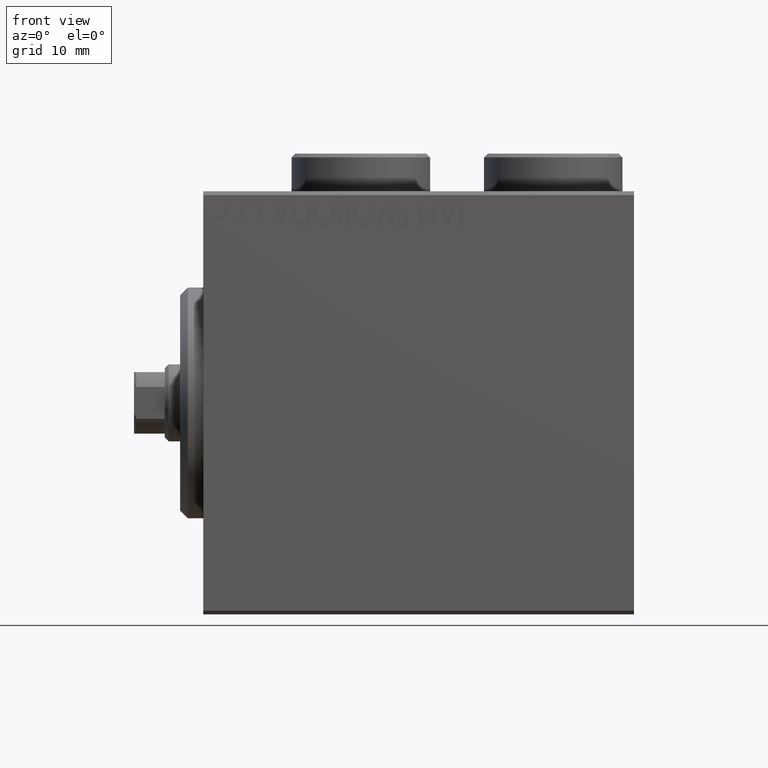
[diagram: clean part render]
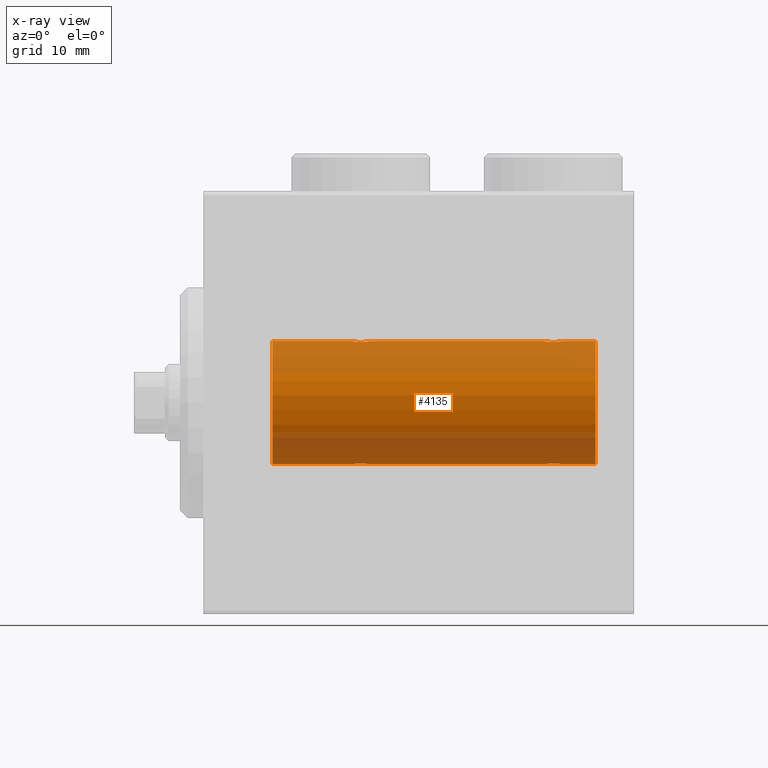
[diagram: x-ray — body ghosted, one internal face saturated and labeled with its STEP entity id]
A machine part, front view, then the same camera in x-ray: the body is ghosted and one INTERNAL B-rep face — a face not visible from any outside direction — is saturated and labeled: STEP entity #4135.
In plain terms, the highlighted cylindrical surface (partial cylindrical patch) has radius 8 mm, axis along (-1, -0, -0).
Its self-contained STEP definition (entity closure, byte-faithful):
#250 = CARTESIAN_POINT ( 'NONE',  ( 44.25000000000002132, -0.1654128203352934201, -7.999999999999998224 ) ) ;
#386 = CARTESIAN_POINT ( 'NONE',  ( 51.00000000000000711, 0.000000000000000000, 7.999999999999998224 ) ) ;
#430 = EDGE_CURVE ( 'NONE', #9644, #38093, #24320, .T. ) ;
#856 = DIRECTION ( 'NONE',  ( -1.000000000000000000, -0.000000000000000000, -0.000000000000000000 ) ) ;
#1284 = LINE ( 'NONE', #43611, #39198 ) ;
#1563 = CARTESIAN_POINT ( 'NONE',  ( 46.59165033467900230, -0.6303134207467945282, 7.976551562999473433 ) ) ;
#2018 = CARTESIAN_POINT ( 'NONE',  ( 44.40749082144728277, -0.6288424646912613714, 7.976670562295706368 ) ) ;
#2309 = FACE_OUTER_BOUND ( 'NONE', #33827, .T. ) ;
#2459 = ORIENTED_EDGE ( 'NONE', *, *, #22415, .T. ) ;
#3152 = DIRECTION ( 'NONE',  ( -1.000000000000000000, -0.000000000000000000, -0.000000000000000000 ) ) ;
#3156 = CARTESIAN_POINT ( 'NONE',  ( 19.25000000000000711, -3.107364149877583097E-15, -7.999999999999998224 ) ) ;
#3293 = CARTESIAN_POINT ( 'NONE',  ( 21.59165033467900940, -0.6303134207467971928, 7.976551562999473433 ) ) ;
#3469 = AXIS2_PLACEMENT_3D ( 'NONE', #6863, #35166, #10766 ) ;
#3708 = CARTESIAN_POINT ( 'NONE',  ( 44.25000000000000711, -5.932357478216049125E-15, -7.999999999999998224 ) ) ;
#3741 = CARTESIAN_POINT ( 'NONE',  ( 21.71666607977186914, -0.3297258132310516010, 7.994620111903504522 ) ) ;
#3932 = CARTESIAN_POINT ( 'NONE',  ( 44.28333392022813797, -0.3297258132310548762, -7.994620111903502746 ) ) ;
#4135 = ADVANCED_FACE ( 'NONE', ( #2309 ), #30385, .F. ) ;
#4712 = VERTEX_POINT ( 'NONE', #44258 ) ;
#5018 = CARTESIAN_POINT ( 'NONE',  ( 46.12714162834986098, -1.084361243153318943, -7.926301147147065684 ) ) ;
#5233 = CARTESIAN_POINT ( 'NONE',  ( 45.17169333885885152, -1.217212176555594771, 7.907113222863028312 ) ) ;
#5289 = CARTESIAN_POINT ( 'NONE',  ( 19.25000000000000711, -0.1654128203352910609, -7.999999999999998224 ) ) ;
#5650 = EDGE_CURVE ( 'NONE', #40560, #9266, #18471, .T. ) ;
#6206 = DIRECTION ( 'NONE',  ( 0.000000000000000000, 0.000000000000000000, 1.000000000000000000 ) ) ;
#6863 = CARTESIAN_POINT ( 'NONE',  ( 9.000000000000001776, 0.000000000000000000, 0.000000000000000000 ) ) ;
#6954 = CARTESIAN_POINT ( 'NONE',  ( 19.87285837165014613, -1.084361243153319387, 7.926301147147063908 ) ) ;
#7042 = ORIENTED_EDGE ( 'NONE', *, *, #34851, .F. ) ;
#7149 = CARTESIAN_POINT ( 'NONE',  ( 46.75000000000000000, -0.1632520343443067401, -8.000000000000000000 ) ) ;
#7374 = B_SPLINE_CURVE_WITH_KNOTS ( 'NONE', 3,
 ( #34813, #33965, #28132, #28361, #44326, #38930, #21219, #6954, #10860, #40873, #45416, #35253, #17759, #17975, #9346, #10201, #3293, #3741, #31806, #20772 ),
 .UNSPECIFIED., .F., .F.,
 ( 4, 2, 2, 2, 2, 2, 2, 2, 2, 4 ),
 ( 0.003914068143704968646, 0.004403205918210080332, 0.004892343692715191150, 0.005136912579967747861, 0.005381481467220303704, 0.005870619241725416257, 0.006359757016230527943, 0.006848894790735639629, 0.007338032565240751315, 0.007827170339745863001 ),
 .UNSPECIFIED. ) ;
#7909 = DIRECTION ( 'NONE',  ( -1.000000000000000000, -0.000000000000000000, -0.000000000000000000 ) ) ;
#9102 = VECTOR ( 'NONE', #856, 1000.000000000000000 ) ;
#9139 = CARTESIAN_POINT ( 'NONE',  ( 44.67312100220858184, -0.9409612394163470173, 7.944680966683011825 ) ) ;
#9198 = CARTESIAN_POINT ( 'NONE',  ( 19.73184514123549249, -0.9994562523959139577, -7.938165420771276182 ) ) ;
#9266 = VERTEX_POINT ( 'NONE', #28985 ) ;
#9346 = CARTESIAN_POINT ( 'NONE',  ( 21.26815485876451461, -0.9994562523959116263, 7.938165420771274405 ) ) ;
#9433 = CARTESIAN_POINT ( 'NONE',  ( 21.75000000000000355, 9.797173987965608855E-16, -7.999999999999998224 ) ) ;
#9539 = VECTOR ( 'NONE', #3152, 1000.000000000000000 ) ;
#9644 = VERTEX_POINT ( 'NONE', #28647 ) ;
#9908 = AXIS2_PLACEMENT_3D ( 'NONE', #44422, #26926, #6206 ) ;
#10201 = CARTESIAN_POINT ( 'NONE',  ( 21.49841755665748622, -0.7695044314719065026, 7.963745725343518878 ) ) ;
#10270 = CARTESIAN_POINT ( 'NONE',  ( 19.25000000000000000, -4.052102368803510290E-23, 7.999999999999998224 ) ) ;
#10462 = EDGE_CURVE ( 'NONE', #31597, #9266, #40951, .T. ) ;
#10691 = VECTOR ( 'NONE', #7909, 1000.000000000000000 ) ;
#10766 = DIRECTION ( 'NONE',  ( 0.000000000000000000, 0.000000000000000000, 1.000000000000000000 ) ) ;
#10860 = CARTESIAN_POINT ( 'NONE',  ( 19.94455374345276155, -1.122809931695431640, 7.920878051565288125 ) ) ;
#11850 = ORIENTED_EDGE ( 'NONE', *, *, #41193, .T. ) ;
#11919 = CARTESIAN_POINT ( 'NONE',  ( 46.26267005793690146, -0.9937204387496705316, -7.938174152191988853 ) ) ;
#12429 = CARTESIAN_POINT ( 'NONE',  ( 20.33559448851098850, -1.250104850332076634, -7.901723728054487417 ) ) ;
#12683 = ORIENTED_EDGE ( 'NONE', *, *, #33069, .T. ) ;
#12826 = CARTESIAN_POINT ( 'NONE',  ( 46.12943792732229298, -1.092287957405115639, 7.925333492638530153 ) ) ;
#12888 = CARTESIAN_POINT ( 'NONE',  ( 21.05544625654724200, -1.122809931695431640, -7.920878051565290789 ) ) ;
#13744 = LINE ( 'NONE', #45273, #9539 ) ;
#14176 = LINE ( 'NONE', #24760, #14197 ) ;
#14197 = VECTOR ( 'NONE', #35557, 1000.000000000000000 ) ;
#14286 = CARTESIAN_POINT ( 'NONE',  ( 44.73184514123551025, -0.9994562523959168443, -7.938165420771277958 ) ) ;
#15593 = CARTESIAN_POINT ( 'NONE',  ( 46.75000000000000711, -0.1654128203352883963, 7.999999999999996447 ) ) ;
#15869 = CARTESIAN_POINT ( 'NONE',  ( 21.59250917855271013, -0.6288424646912625926, -7.976670562295708145 ) ) ;
#16326 = CARTESIAN_POINT ( 'NONE',  ( 21.75000000000000355, -0.1632520343443068511, -7.999999999999998224 ) ) ;
#16673 = B_SPLINE_CURVE_WITH_KNOTS ( 'NONE', 3,
 ( #29406, #7149, #20960, #22504, #31554, #38899, #11919, #5018, #25091, #21405, #25955, #35221, #35445, #43443, #14286, #19037, #29628, #3932, #250, #3708 ),
 .UNSPECIFIED., .F., .F.,
 ( 4, 2, 2, 2, 2, 2, 2, 2, 2, 4 ),
 ( 0.003914068143704942625, 0.004403205918210042168, 0.004892343692715140843, 0.005136912579967698421, 0.005381481467220255999, 0.005870619241725370287, 0.006359757016230484575, 0.006848894790735598863, 0.007338032565240713151, 0.007827170339745828306 ),
 .UNSPECIFIED. ) ;
#17759 = CARTESIAN_POINT ( 'NONE',  ( 20.82701716371747480, -1.217515856520238637, 7.907063872927298398 ) ) ;
#17975 = CARTESIAN_POINT ( 'NONE',  ( 21.12943792732229298, -1.092287957405117194, 7.925333492638531929 ) ) ;
#18471 = LINE ( 'NONE', #39882, #10691 ) ;
#18670 = ORIENTED_EDGE ( 'NONE', *, *, #18735, .T. ) ;
#18735 = EDGE_CURVE ( 'NONE', #40560, #38524, #7374, .T. ) ;
#19037 = CARTESIAN_POINT ( 'NONE',  ( 44.50158244334253510, -0.7695044314719126088, -7.963745725343517101 ) ) ;
#19260 = CARTESIAN_POINT ( 'NONE',  ( 46.26815485876451817, -0.9994562523959094058, 7.938165420771274405 ) ) ;
#19482 = CARTESIAN_POINT ( 'NONE',  ( 44.94455374345275800, -1.122809931695426311, 7.920878051565289901 ) ) ;
#19777 = CARTESIAN_POINT ( 'NONE',  ( 21.49958686675913810, -0.7680324342712174790, -7.963892330120039276 ) ) ;
#20174 = CARTESIAN_POINT ( 'NONE',  ( 46.49841755665749332, -0.7695044314719045042, 7.963745725343520654 ) ) ;
#20325 = VERTEX_POINT ( 'NONE', #27761 ) ;
#20772 = CARTESIAN_POINT ( 'NONE',  ( 21.75000000000000355, -5.238855365914187376E-16, 7.999999999999998224 ) ) ;
#20911 = ORIENTED_EDGE ( 'NONE', *, *, #38872, .F. ) ;
#20960 = CARTESIAN_POINT ( 'NONE',  ( 46.71715712019487654, -0.3279446529214866679, -7.994696267489720398 ) ) ;
#20962 = B_SPLINE_CURVE_WITH_KNOTS ( 'NONE', 3,
 ( #9433, #16326, #30376, #15869, #19777, #23473, #29918, #43504, #12888, #40046, #33356, #12429, #44416, #37509, #9198, #26920, #33133, #43726, #5289, #3156 ),
 .UNSPECIFIED., .F., .F.,
 ( 4, 2, 2, 2, 2, 2, 2, 2, 2, 4 ),
 ( 0.003914068143704951298, 0.004403205918210062117, 0.004892343692715172936, 0.005136912579967725309, 0.005381481467220276815, 0.005870619241725390236, 0.006359757016230503657, 0.006848894790735617077, 0.007338032565240730498, 0.007827170339745843919 ),
 .UNSPECIFIED. ) ;
#21219 = CARTESIAN_POINT ( 'NONE',  ( 19.73732994206309499, -0.9937204387496718638, 7.938174152191987076 ) ) ;
#21316 = EDGE_CURVE ( 'NONE', #36080, #45239, #13744, .T. ) ;
#21405 = CARTESIAN_POINT ( 'NONE',  ( 45.82830666114114848, -1.217212176555600989, -7.907113222863030089 ) ) ;
#22415 = EDGE_CURVE ( 'NONE', #23123, #31597, #27682, .T. ) ;
#22504 = CARTESIAN_POINT ( 'NONE',  ( 46.59250917855270302, -0.6288424646912637028, -7.976670562295706368 ) ) ;
#22949 = CARTESIAN_POINT ( 'NONE',  ( 44.25000000000000000, -4.052102368803510290E-23, 7.999999999999998224 ) ) ;
#23123 = VERTEX_POINT ( 'NONE', #28583 ) ;
#23473 = CARTESIAN_POINT ( 'NONE',  ( 21.32687899779140750, -0.9409612394163509030, -7.944680966683015377 ) ) ;
#23646 = CARTESIAN_POINT ( 'NONE',  ( 45.33400394983990367, -1.249894643705215858, 7.901756981264366431 ) ) ;
#24320 = B_SPLINE_CURVE_WITH_KNOTS ( 'NONE', 3,
 ( #22949, #27090, #36986, #2018, #37452, #9139, #33766, #41130, #19482, #5233, #23646, #37680, #26634, #12826, #19260, #20174, #1563, #37219, #15593, #33301 ),
 .UNSPECIFIED., .F., .F.,
 ( 4, 2, 2, 2, 2, 2, 2, 2, 2, 4 ),
 ( 0.003914068143704962574, 0.004403205918210084668, 0.004892343692715206763, 0.005136912579967760871, 0.005381481467220314979, 0.005870619241725421461, 0.006359757016230529678, 0.006848894790735636159, 0.007338032565240744376, 0.007827170339745850858 ),
 .UNSPECIFIED. ) ;
#24521 = CARTESIAN_POINT ( 'NONE',  ( 46.75000000000000000, 2.184524186358155277E-16, 7.999999999999998224 ) ) ;
#24745 = ORIENTED_EDGE ( 'NONE', *, *, #5650, .F. ) ;
#24760 = CARTESIAN_POINT ( 'NONE',  ( 51.00000000000000711, 0.000000000000000000, 7.999999999999998224 ) ) ;
#24896 = DIRECTION ( 'NONE',  ( -1.000000000000000000, -0.000000000000000000, -0.000000000000000000 ) ) ;
#25052 = ORIENTED_EDGE ( 'NONE', *, *, #10462, .T. ) ;
#25091 = CARTESIAN_POINT ( 'NONE',  ( 46.05544625654727042, -1.122809931695432972, -7.920878051565292566 ) ) ;
#25246 = VERTEX_POINT ( 'NONE', #386 ) ;
#25441 = DIRECTION ( 'NONE',  ( -1.000000000000000000, -0.000000000000000000, -0.000000000000000000 ) ) ;
#25591 = ORIENTED_EDGE ( 'NONE', *, *, #31496, .F. ) ;
#25955 = CARTESIAN_POINT ( 'NONE',  ( 45.66599605016010344, -1.249894643705221853, -7.901756981264364654 ) ) ;
#26163 = ORIENTED_EDGE ( 'NONE', *, *, #21316, .T. ) ;
#26207 = ORIENTED_EDGE ( 'NONE', *, *, #430, .T. ) ;
#26634 = CARTESIAN_POINT ( 'NONE',  ( 45.82701716371747125, -1.217515856520235973, 7.907063872927300174 ) ) ;
#26920 = CARTESIAN_POINT ( 'NONE',  ( 19.50158244334252089, -0.7695044314719098333, -7.963745725343515325 ) ) ;
#26926 = DIRECTION ( 'NONE',  ( -1.000000000000000000, -0.000000000000000000, -0.000000000000000000 ) ) ;
#27090 = CARTESIAN_POINT ( 'NONE',  ( 44.25000000000000000, -0.1632520343443069621, 8.000000000000000000 ) ) ;
#27682 = LINE ( 'NONE', #41721, #41888 ) ;
#27753 = DIRECTION ( 'NONE',  ( -1.000000000000000000, 0.000000000000000000, 0.000000000000000000 ) ) ;
#27761 = CARTESIAN_POINT ( 'NONE',  ( 46.74999999999999289, 9.797173987957720246E-16, -7.999999999999998224 ) ) ;
#28132 = CARTESIAN_POINT ( 'NONE',  ( 19.28284287980512346, -0.3279446529214878892, 7.994696267489722175 ) ) ;
#28253 = AXIS2_PLACEMENT_3D ( 'NONE', #30983, #27753, #41790 ) ;
#28361 = CARTESIAN_POINT ( 'NONE',  ( 19.40749082144729343, -0.6288424646912649241, 7.976670562295706368 ) ) ;
#28583 = CARTESIAN_POINT ( 'NONE',  ( 19.25000000000000711, -3.107364149877583097E-15, -7.999999999999998224 ) ) ;
#28647 = CARTESIAN_POINT ( 'NONE',  ( 44.25000000000000000, -4.052102368803510290E-23, 7.999999999999998224 ) ) ;
#28985 = CARTESIAN_POINT ( 'NONE',  ( 9.000000000000001776, 0.000000000000000000, 7.999999999999998224 ) ) ;
#29406 = CARTESIAN_POINT ( 'NONE',  ( 46.74999999999999289, 9.797173987957720246E-16, -7.999999999999998224 ) ) ;
#29628 = CARTESIAN_POINT ( 'NONE',  ( 44.40834966532099060, -0.6303134207468006345, -7.976551562999471656 ) ) ;
#29918 = CARTESIAN_POINT ( 'NONE',  ( 21.26267005793691212, -0.9937204387496720859, -7.938174152191990629 ) ) ;
#30376 = CARTESIAN_POINT ( 'NONE',  ( 21.71715712019488009, -0.3279446529214856687, -7.994696267489723951 ) ) ;
#30385 = CYLINDRICAL_SURFACE ( 'NONE', #9908, 7.999999999999998224 ) ;
#30576 = CARTESIAN_POINT ( 'NONE',  ( 21.75000000000000355, 9.797173987965608855E-16, -7.999999999999998224 ) ) ;
#30983 = CARTESIAN_POINT ( 'NONE',  ( 51.00000000000000711, 0.000000000000000000, 0.000000000000000000 ) ) ;
#31496 = EDGE_CURVE ( 'NONE', #25246, #38093, #1284, .T. ) ;
#31554 = CARTESIAN_POINT ( 'NONE',  ( 46.49958686675912389, -0.7680324342712128161, -7.963892330120035723 ) ) ;
#31597 = VERTEX_POINT ( 'NONE', #43831 ) ;
#31706 = CARTESIAN_POINT ( 'NONE',  ( 21.75000000000000355, -5.238855365914187376E-16, 7.999999999999998224 ) ) ;
#31806 = CARTESIAN_POINT ( 'NONE',  ( 21.75000000000000711, -0.1654128203352884796, 8.000000000000001776 ) ) ;
#31925 = CIRCLE ( 'NONE', #28253, 7.999999999999998224 ) ;
#32381 = LINE ( 'NONE', #39514, #9102 ) ;
#33069 = EDGE_CURVE ( 'NONE', #45239, #23123, #20962, .T. ) ;
#33133 = CARTESIAN_POINT ( 'NONE',  ( 19.40834966532100481, -0.6303134207467991912, -7.976551562999473433 ) ) ;
#33249 = ORIENTED_EDGE ( 'NONE', *, *, #37915, .T. ) ;
#33301 = CARTESIAN_POINT ( 'NONE',  ( 46.75000000000000000, 2.184524186358155277E-16, 7.999999999999998224 ) ) ;
#33356 = CARTESIAN_POINT ( 'NONE',  ( 20.66599605016009988, -1.249894643705219854, -7.901756981264366431 ) ) ;
#33766 = CARTESIAN_POINT ( 'NONE',  ( 44.73732994206308433, -0.9937204387496696434, 7.938174152191987076 ) ) ;
#33827 = EDGE_LOOP ( 'NONE', ( #20911, #33249, #11850, #26163, #12683, #2459, #25052, #24745, #18670, #7042, #26207, #25591 ) ) ;
#33965 = CARTESIAN_POINT ( 'NONE',  ( 19.25000000000000355, -0.1632520343443080724, 8.000000000000000000 ) ) ;
#34813 = CARTESIAN_POINT ( 'NONE',  ( 19.25000000000000000, -4.052102368803510290E-23, 7.999999999999998224 ) ) ;
#34851 = EDGE_CURVE ( 'NONE', #9644, #38524, #14176, .T. ) ;
#35166 = DIRECTION ( 'NONE',  ( -1.000000000000000000, 0.000000000000000000, 0.000000000000000000 ) ) ;
#35221 = CARTESIAN_POINT ( 'NONE',  ( 45.33559448851095652, -1.250104850332078854, -7.901723728054487417 ) ) ;
#35253 = CARTESIAN_POINT ( 'NONE',  ( 20.66440551148902571, -1.250104850332075523, 7.901723728054487417 ) ) ;
#35445 = CARTESIAN_POINT ( 'NONE',  ( 45.17298283628253586, -1.217515856520241968, -7.907063872927295733 ) ) ;
#35557 = DIRECTION ( 'NONE',  ( -1.000000000000000000, -0.000000000000000000, -0.000000000000000000 ) ) ;
#36080 = VERTEX_POINT ( 'NONE', #36968 ) ;
#36968 = CARTESIAN_POINT ( 'NONE',  ( 44.25000000000000711, -5.932357478216049125E-15, -7.999999999999998224 ) ) ;
#36986 = CARTESIAN_POINT ( 'NONE',  ( 44.28284287980513056, -0.3279446529214851691, 7.994696267489722175 ) ) ;
#37219 = CARTESIAN_POINT ( 'NONE',  ( 46.71666607977186914, -0.3297258132310492140, 7.994620111903504522 ) ) ;
#37452 = CARTESIAN_POINT ( 'NONE',  ( 44.50041313324088321, -0.7680324342712147034, 7.963892330120037499 ) ) ;
#37509 = CARTESIAN_POINT ( 'NONE',  ( 19.87056207267771413, -1.092287957405118970, -7.925333492638526600 ) ) ;
#37680 = CARTESIAN_POINT ( 'NONE',  ( 45.66440551148901505, -1.250104850332072859, 7.901723728054492746 ) ) ;
#37915 = EDGE_CURVE ( 'NONE', #4712, #20325, #32381, .T. ) ;
#38093 = VERTEX_POINT ( 'NONE', #24521 ) ;
#38524 = VERTEX_POINT ( 'NONE', #31706 ) ;
#38872 = EDGE_CURVE ( 'NONE', #4712, #25246, #31925, .T. ) ;
#38899 = CARTESIAN_POINT ( 'NONE',  ( 46.32687899779141816, -0.9409612394163474614, -7.944680966683013601 ) ) ;
#38930 = CARTESIAN_POINT ( 'NONE',  ( 19.67312100220859605, -0.9409612394163516802, 7.944680966683013601 ) ) ;
#39198 = VECTOR ( 'NONE', #25441, 1000.000000000000000 ) ;
#39514 = CARTESIAN_POINT ( 'NONE',  ( 51.00000000000000711, 9.797174393178823685E-16, -7.999999999999998224 ) ) ;
#39882 = CARTESIAN_POINT ( 'NONE',  ( 51.00000000000000711, 0.000000000000000000, 7.999999999999998224 ) ) ;
#40046 = CARTESIAN_POINT ( 'NONE',  ( 20.82830666114114848, -1.217212176555599434, -7.907113222863026536 ) ) ;
#40560 = VERTEX_POINT ( 'NONE', #10270 ) ;
#40873 = CARTESIAN_POINT ( 'NONE',  ( 20.17169333885885862, -1.217212176555599878, 7.907113222863031865 ) ) ;
#40951 = CIRCLE ( 'NONE', #3469, 7.999999999999998224 ) ;
#41130 = CARTESIAN_POINT ( 'NONE',  ( 44.87285837165013902, -1.084361243153316945, 7.926301147147065684 ) ) ;
#41193 = EDGE_CURVE ( 'NONE', #20325, #36080, #16673, .T. ) ;
#41721 = CARTESIAN_POINT ( 'NONE',  ( 51.00000000000000711, 9.797174393178823685E-16, -7.999999999999998224 ) ) ;
#41790 = DIRECTION ( 'NONE',  ( 0.000000000000000000, 0.000000000000000000, 1.000000000000000000 ) ) ;
#41888 = VECTOR ( 'NONE', #24896, 1000.000000000000000 ) ;
#43443 = CARTESIAN_POINT ( 'NONE',  ( 44.87056207267771413, -1.092287957405121634, -7.925333492638528377 ) ) ;
#43504 = CARTESIAN_POINT ( 'NONE',  ( 21.12714162834985387, -1.084361243153318721, -7.926301147147063908 ) ) ;
#43611 = CARTESIAN_POINT ( 'NONE',  ( 51.00000000000000711, 0.000000000000000000, 7.999999999999998224 ) ) ;
#43726 = CARTESIAN_POINT ( 'NONE',  ( 19.28333392022813797, -0.3297258132310537104, -7.994620111903500970 ) ) ;
#43831 = CARTESIAN_POINT ( 'NONE',  ( 9.000000000000001776, 9.797174393178823685E-16, -7.999999999999998224 ) ) ;
#44258 = CARTESIAN_POINT ( 'NONE',  ( 51.00000000000000711, 9.797174393178823685E-16, -7.999999999999998224 ) ) ;
#44326 = CARTESIAN_POINT ( 'NONE',  ( 19.50041313324087611, -0.7680324342712183672, 7.963892330120039276 ) ) ;
#44416 = CARTESIAN_POINT ( 'NONE',  ( 20.17298283628253230, -1.217515856520239970, -7.907063872927298398 ) ) ;
#44422 = CARTESIAN_POINT ( 'NONE',  ( 51.00000000000000711, 0.000000000000000000, 0.000000000000000000 ) ) ;
#45239 = VERTEX_POINT ( 'NONE', #30576 ) ;
#45273 = CARTESIAN_POINT ( 'NONE',  ( 51.00000000000000711, 9.797174393178823685E-16, -7.999999999999998224 ) ) ;
#45416 = CARTESIAN_POINT ( 'NONE',  ( 20.33400394983990722, -1.249894643705219410, 7.901756981264364654 ) ) ;